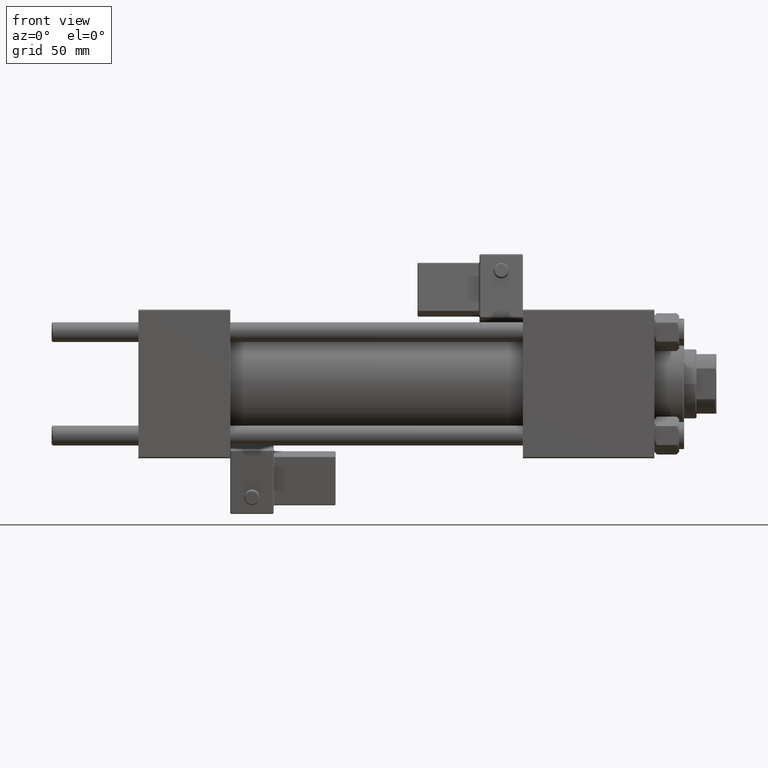
[diagram: clean part render]
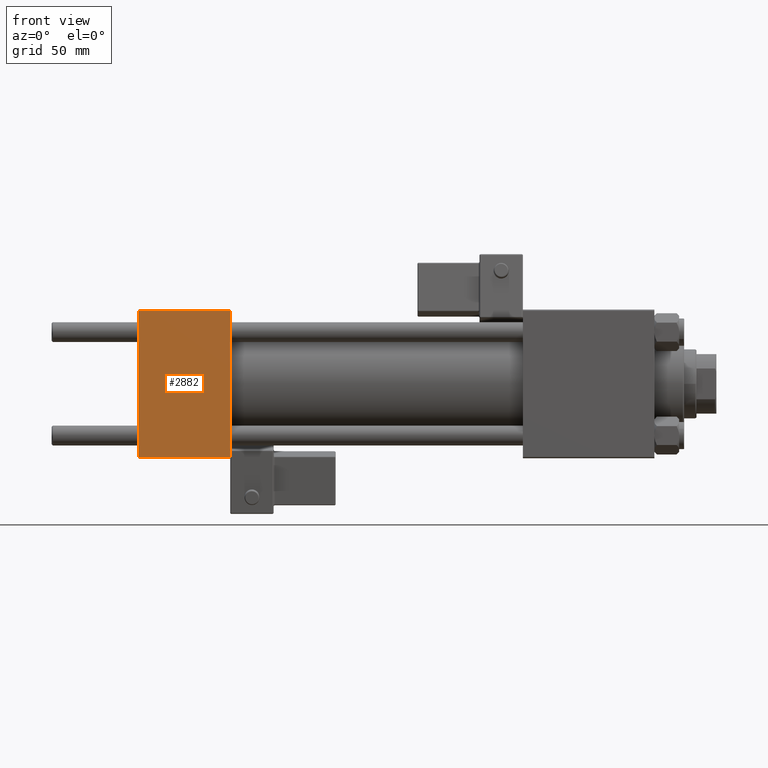
[diagram: same view with one face highlighted and labeled with its STEP entity id]
A machine part, front view. The second image highlights one B-rep face of the part: STEP entity #2882.
In plain terms, the highlighted planar face has unit normal (0, 1, 0).
Its self-contained STEP definition (entity closure, byte-faithful):
#826 = CARTESIAN_POINT ( 'NONE',  ( 37.00000000000000000, -30.00000000000000000, 29.99999999999999289 ) ) ;
#1691 = VERTEX_POINT ( 'NONE', #43332 ) ;
#2882 = ADVANCED_FACE ( 'NONE', ( #14979 ), #39159, .F. ) ;
#2958 = LINE ( 'NONE', #43257, #9873 ) ;
#3933 = CARTESIAN_POINT ( 'NONE',  ( 0.000000000000000000, -30.00000000000000000, 29.49999999999999289 ) ) ;
#4225 = CARTESIAN_POINT ( 'NONE',  ( 37.00000000000000000, -30.00000000000000000, 29.49999999999999289 ) ) ;
#6356 = ORIENTED_EDGE ( 'NONE', *, *, #51218, .F. ) ;
#6518 = VERTEX_POINT ( 'NONE', #3933 ) ;
#9873 = VECTOR ( 'NONE', #23266, 1000.000000000000000 ) ;
#10758 = DIRECTION ( 'NONE',  ( 0.000000000000000000, -0.000000000000000000, 1.000000000000000000 ) ) ;
#13261 = DIRECTION ( 'NONE',  ( -1.000000000000000000, 0.000000000000000000, 0.000000000000000000 ) ) ;
#13676 = CARTESIAN_POINT ( 'NONE',  ( 37.00000000000000000, -30.00000000000000000, -29.50000000000001776 ) ) ;
#14979 = FACE_OUTER_BOUND ( 'NONE', #36013, .T. ) ;
#15485 = DIRECTION ( 'NONE',  ( -0.000000000000000000, 1.000000000000000000, 0.000000000000000000 ) ) ;
#16241 = AXIS2_PLACEMENT_3D ( 'NONE', #35215, #15485, #10758 ) ;
#20421 = LINE ( 'NONE', #23848, #39568 ) ;
#23266 = DIRECTION ( 'NONE',  ( 1.000000000000000000, 0.000000000000000000, 0.000000000000000000 ) ) ;
#23848 = CARTESIAN_POINT ( 'NONE',  ( 0.000000000000000000, -30.00000000000000000, 29.99999999999999289 ) ) ;
#24288 = LINE ( 'NONE', #826, #25462 ) ;
#25462 = VECTOR ( 'NONE', #36366, 1000.000000000000000 ) ;
#26227 = EDGE_CURVE ( 'NONE', #44125, #6518, #42194, .T. ) ;
#32892 = ORIENTED_EDGE ( 'NONE', *, *, #34223, .T. ) ;
#33245 = CARTESIAN_POINT ( 'NONE',  ( 37.00000000000000000, -30.00000000000000000, 29.49999999999999289 ) ) ;
#34223 = EDGE_CURVE ( 'NONE', #1691, #47376, #2958, .T. ) ;
#35215 = CARTESIAN_POINT ( 'NONE',  ( 37.00000000000000000, -30.00000000000000000, 29.99999999999999289 ) ) ;
#36013 = EDGE_LOOP ( 'NONE', ( #40039, #32892, #6356, #36933 ) ) ;
#36366 = DIRECTION ( 'NONE',  ( 0.000000000000000000, 0.000000000000000000, -1.000000000000000000 ) ) ;
#36441 = DIRECTION ( 'NONE',  ( 0.000000000000000000, 0.000000000000000000, -1.000000000000000000 ) ) ;
#36933 = ORIENTED_EDGE ( 'NONE', *, *, #26227, .T. ) ;
#39159 = PLANE ( 'NONE',  #16241 ) ;
#39568 = VECTOR ( 'NONE', #36441, 1000.000000000000000 ) ;
#40039 = ORIENTED_EDGE ( 'NONE', *, *, #42786, .T. ) ;
#42194 = LINE ( 'NONE', #33245, #47113 ) ;
#42786 = EDGE_CURVE ( 'NONE', #6518, #1691, #20421, .T. ) ;
#43257 = CARTESIAN_POINT ( 'NONE',  ( 37.00000000000000000, -30.00000000000000000, -29.50000000000001776 ) ) ;
#43332 = CARTESIAN_POINT ( 'NONE',  ( 0.000000000000000000, -30.00000000000000000, -29.50000000000001776 ) ) ;
#44125 = VERTEX_POINT ( 'NONE', #4225 ) ;
#47113 = VECTOR ( 'NONE', #13261, 1000.000000000000000 ) ;
#47376 = VERTEX_POINT ( 'NONE', #13676 ) ;
#51218 = EDGE_CURVE ( 'NONE', #44125, #47376, #24288, .T. ) ;